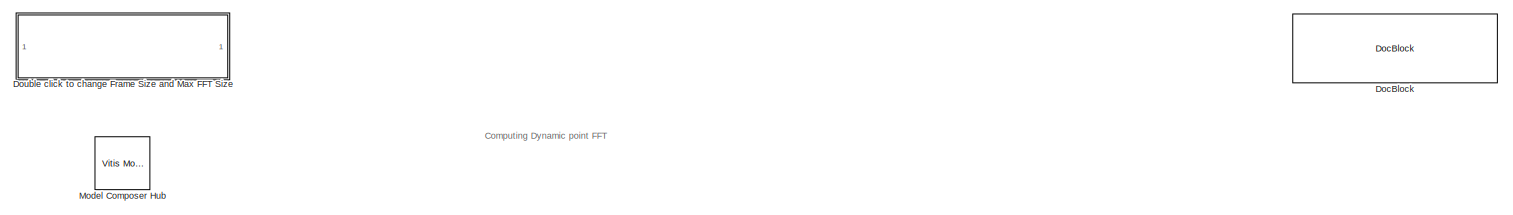
[diagram: root canvas - part 1/3, full width, top band]
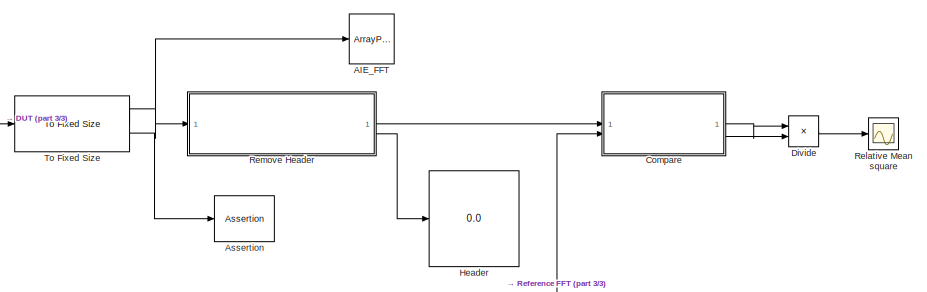
[diagram: root canvas - part 2/3, middle right region]
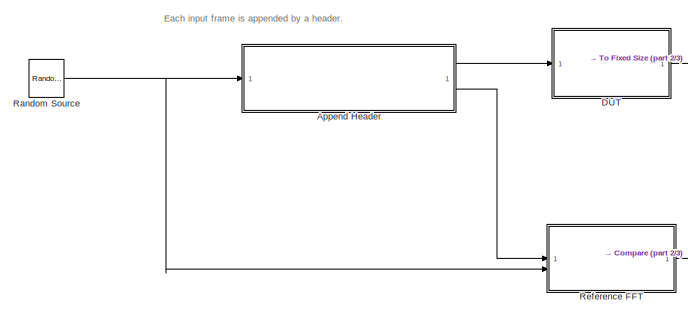
[diagram: root canvas - part 3/3, bottom left region]
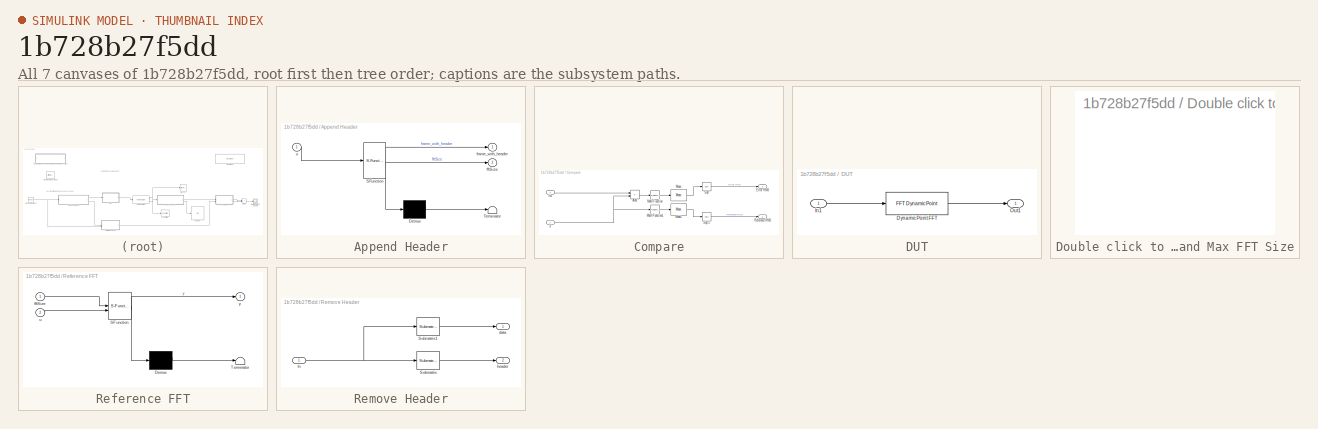
[diagram: thumbnail index - all 7 canvases of the model, root first then tree order]
MODEL slx_1b728b27f5dd
KIND model
CONFIG AbsTol = auto
CONFIG EnableMultiTasking = off
CONFIG FixedStep = auto
CONFIG InitFcn = header_size = 4; % For single and int32 data types
CONFIG MaxStep = auto
CONFIG MinStep = auto
CONFIG PostLoadFcn = header_size = 4; % For single and int32 data types
CONFIG RelTol = 1e-3
CONFIG SampleTimeConstraint = Unconstrained
CONFIG SolverName = VariableStepAuto
CONFIG StartTime = 0.0
CONFIG StopTime = 10240
WORKSPACE source: mxarray member
WORKSPACE FFT_len = 2048
WORKSPACE frame_size = 1024
WORKSPACE max_fft_size = 1024
BLOCK [ArrayPlot] AIE_FFT
  DefaultConfigurationName = dsp.scopes.ArrayPlotBlockSpecification
  GraphicalSettings = {"Style":{"BackgroundColor":[0.1568627450980392,0.1568627450980392,0.1568627450980392],"AxesColor":[0,0,0],"LabelsColor":[0.6862745098039216,0.6862745098039216,0.6862745098039216],"PreserveColors":false,"Visible":[true,true],"LineStyle":["-","-"],"LineColor":[[1,1,0.06666666666666667],[0.07450980392156863,0.6235294117647059,1]],"LineWidth":[1.5,1.5],"Marker":["o","o"],"FontSize":"small"},"Cursors"...<+537ch>
  ScopeFrameLocation = window
  ShowLegend = on
  WasSavedAsWebScope = on
  WindowPosition = [151.000000,479.000000,800.000000,500.000000,]
  YLimits = [-94.8561 106.9601]
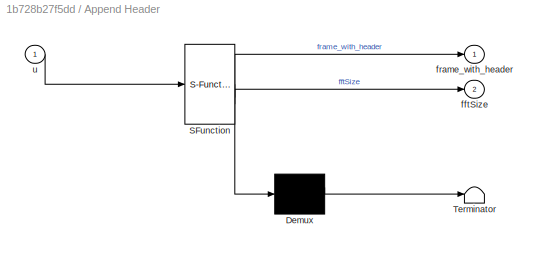
BLOCK [SubSystem] Append Header
  ErrorFcn = Stateflow.Translate.translate
  PermitHierarchicalResolution = ExplicitOnly
  SFBlockType = MATLAB Function
  TreatAsAtomicUnit = on
BLOCK [Demux] Append Header/ Demux 
  Outputs = 1
BLOCK [S-Function] Append Header/ SFunction 
  EnableBusSupport = on
  FunctionName = sf_sfun
  Parameters = fftSizeInput
  PortCounts = [1 3]
  SFcnIsStateOwnerBlock = off
  SFunctionDeploymentMode = off
  Tag = Stateflow S-Function 2
BLOCK [Terminator] Append Header/ Terminator 
BLOCK [Outport] Append Header/fftSize
  Port = 2
BLOCK [Outport] Append Header/frame_with_header
BLOCK [Inport] Append Header/u
BLOCK [Assertion] Assertion
BLOCK [SubSystem] Compare
BLOCK [Sum] Compare/Add
  IconShape = rectangular
  Inputs = +-
BLOCK [Outport] Compare/Error RMS
BLOCK [Inport] Compare/In1
BLOCK [Math] Compare/Math Function
  Operator = magnitude^2
BLOCK [Math] Compare/Math Function1
  Operator = magnitude^2
BLOCK [Reference] Compare/Mean  REF=dspstat3/Mean
  SourceBlock = dspstat3/Mean
  SourceType = Mean
  UserDataPersistent = on
BLOCK [Reference] Compare/Mean1  REF=dspstat3/Mean
  SourceBlock = dspstat3/Mean
  SourceType = Mean
  UserDataPersistent = on
BLOCK [Outport] Compare/Reference RMS
  Port = 2
BLOCK [Sqrt] Compare/Sqrt
BLOCK [Sqrt] Compare/Sqrt1
BLOCK [Inport] Compare/y
  Port = 2
BLOCK [SubSystem] DUT
BLOCK [Reference] DUT/Dynamic Point FFT  REF=aieDSP/FFT Dynamic Point
  SourceBlock = aieDSP/FFT Dynamic Point
  SourceType = FFT Dynamic Point
BLOCK [Inport] DUT/In1
BLOCK [Outport] DUT/Out1
BLOCK [Product] Divide
  Inputs = */
BLOCK [Reference] DocBlock  REF=simulink/Model-Wide
Utilities/DocBlock
  SourceBlock = simulink/Model-Wide\nUtilities/DocBlock
  SourceType = DocBlock
  UserDataPersistent = on
BLOCK [SubSystem] Double click to change Frame Size and Max FFT Size
  InitFcn = stop_time = str2num(get_param(gcb, 'frame_size')) * 10;\nset_param(gcs, 'StopTime', num2str(stop_time));
BLOCK [Display] Header
  Decimation = 1
BLOCK [Reference] Model Composer Hub  REF=vmcUtilities/Vitis Model Composer Hub
  SourceBlock = vmcUtilities/Vitis Model Composer Hub
  SourceType = VMC Hub
  Tag = genX
  UserDataPersistent = on
BLOCK [Reference] Random Source  REF=dspobslib/Random
Source
  SourceBlock = dspobslib/Random\nSource
  SourceType = Random Source Obsolete
  UserDataPersistent = on
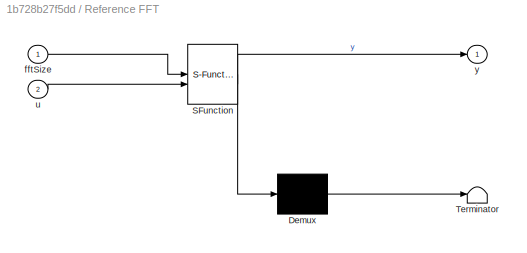
BLOCK [SubSystem] Reference FFT
  ErrorFcn = Stateflow.Translate.translate
  PermitHierarchicalResolution = ExplicitOnly
  SFBlockType = MATLAB Function
  TreatAsAtomicUnit = on
BLOCK [Demux] Reference FFT/ Demux 
  Outputs = 1
BLOCK [S-Function] Reference FFT/ SFunction 
  EnableBusSupport = on
  FunctionName = sf_sfun
  Parameters = frame_size,max_fft_size
  PortCounts = [2 2]
  SFcnIsStateOwnerBlock = off
  SFunctionDeploymentMode = off
  Tag = Stateflow S-Function 1
BLOCK [Terminator] Reference FFT/ Terminator 
BLOCK [Inport] Reference FFT/fftSize
BLOCK [Inport] Reference FFT/u
  Port = 2
BLOCK [Outport] Reference FFT/y
BLOCK [Scope] Relative Mean square
  Floating = off
  NumInputPorts = 1
  ScopeSpecificationString = Simulink.scopes.TimeScopeBlockCfg('CurrentConfiguration', extmgr.ConfigurationSet(extmgr.Configuration('Core','General UI',true,'FigureColor',[0.129411764705882 0.129411764705882 0.129411764705882]),extmgr.Configuration('Core','Source UI',true),extmgr.Configuration('Sources','WiredSimulink',true),extmgr.Configuration('Visuals','Time Domain',true,'SerializedDisplays',{struct('MinYLimReal','1.0999e-...<+1672ch>
BLOCK [SubSystem] Remove Header
BLOCK [Inport] Remove Header/In
BLOCK [Reference] Remove Header/Submatrix  REF=matrix_library/Submatrix
  SourceBlock = matrix_library/Submatrix
  SourceType = Submatrix
BLOCK [Reference] Remove Header/Submatrix1  REF=matrix_library/Submatrix
  SourceBlock = matrix_library/Submatrix
  SourceType = Submatrix
BLOCK [Outport] Remove Header/data
BLOCK [Outport] Remove Header/header
  Port = 2
BLOCK [Reference] To Fixed Size  REF=aieUtilities/To Fixed Size
  SourceBlock = aieUtilities/To Fixed Size
  SourceType = To Fixed Size
ANNOTATION (root): Computing Dynamic point FFT
ANNOTATION (root): Each input frame is appended by a header.
LINE Append Header:1 -> DUT:1
LINE Append Header:2 -> Reference FFT:1
LINE Compare/Add:1 -> Compare/Math Function:1
LINE Compare/In1:1 -> Compare/Add:1
LINE Compare/Math Function1:1 -> Compare/Mean1:1
LINE Compare/Math Function:1 -> Compare/Mean:1
LINE Compare/Mean1:1 -> Compare/Sqrt1:1
LINE Compare/Mean:1 -> Compare/Sqrt:1
LINE Compare/Sqrt1:1 -> Compare/Reference RMS:1
LINE Compare/Sqrt:1 -> Compare/Error RMS:1
NET Compare/y:1 -> Compare/Add:2, Compare/Math Function1:1
LINE Compare:1 -> Divide:1
LINE Compare:2 -> Divide:2
LINE DUT/Dynamic Point FFT:1 -> DUT/Out1:1
LINE DUT/In1:1 -> DUT/Dynamic Point FFT:1
LINE DUT:1 -> To Fixed Size:1
LINE Divide:1 -> Relative Mean square:1
NET Random Source:1 -> Append Header:1, Reference FFT:2
LINE Reference FFT:1 -> Compare:2
NET Remove Header/In:1 -> Remove Header/Submatrix1:1, Remove Header/Submatrix:1
LINE Remove Header/Submatrix1:1 -> Remove Header/data:1
LINE Remove Header/Submatrix:1 -> Remove Header/header:1
LINE Remove Header:1 -> Compare:1
LINE Remove Header:2 -> Header:1
NET To Fixed Size:1 -> AIE_FFT:1, Remove Header:1
LINE To Fixed Size:2 -> Assertion:1
note: NET lines group one-source signal fan-out (src -> all destinations, sorted); 1:1 wires keep LINE
CHART Reference FFT states=1 transitions=1
  STATE_LABEL 'eML_blk_kernel()'
  STATE_LABEL 'SCRIPT:\nfunction y = fcn(fftSize, u, frame_size, max_fft_size)\n\nout = complex(zeros(frame_size,1));\n\nfor i = 0:frame_size/max_fft_size-1\n    frame_fft = fft(double(u(i*max_fft_size+1:(i+1)*max_fft_size)),fftSize);\n    out(i*max_fft_size+1:(i+1)*max_fft_size) = [frame_fft; zeros(max_fft_size - fftSize,1)];\nend\n\ny = out(1:frame_size);'
CHART Append Header states=1 transitions=1
  STATE_LABEL 'eML_blk_kernel()'
  STATE_LABEL "SCRIPT:\nfunction [frame_with_header, fftSize] = fcn(u, fftSizeInput)\n\npersistent inputFrameNum\n\nif isempty(inputFrameNum)\n    inputFrameNum = 1;    \nend\n\nheaderValueSize = 4; % for int32 and Single data types.  \nheaderValue = zeros(headerValueSize,1);\n\n% fftSize must be an array of power of twos that are smaller than input size\n\nif any( fftSizeInput > length(u))\n    error('fft sizes should be smal...<+768ch>"
CHART  states=0 transitions=0
CHART  states=0 transitions=0
